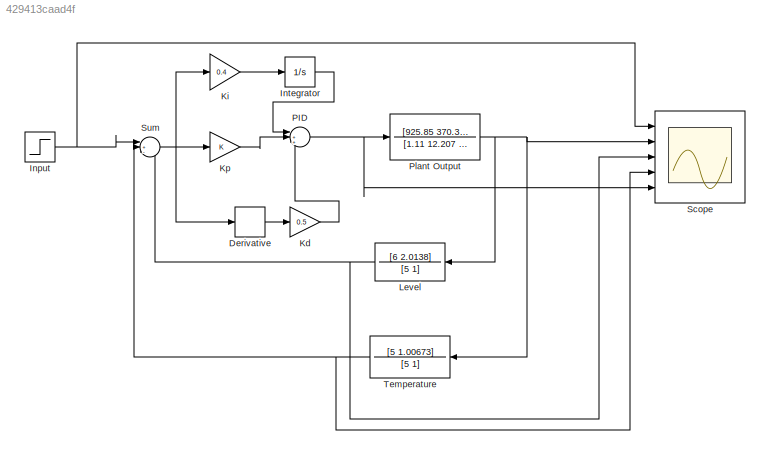
MODEL slx_429413caad4f
KIND model
CONFIG AbsTol = auto
CONFIG EnableMultiTasking = off
CONFIG FixedStep = auto
CONFIG MaxStep = auto
CONFIG MinStep = auto
CONFIG RelTol = 1e-3
CONFIG SampleTimeConstraint = Unconstrained
CONFIG SolverName = ode45
CONFIG StartTime = 0.0
CONFIG StopTime = 12
WORKSPACE source: mxarray member
WORKSPACE e = -5
BLOCK [Derivative] Derivative
BLOCK [Step] Input
  SampleTime = 0
BLOCK [Integrator] Integrator
  Ports = [1, 1]
BLOCK [Gain] Kd
  Gain = 0.5
BLOCK [Gain] Ki
  Gain = 0.4
BLOCK [Gain] Kp
BLOCK [TransferFcn] Level
  Denominator = [5 1]
  Numerator = [6 2.0138]
BLOCK [Sum] PID
  Inputs = |+++
  NameLocation = left
  Ports = [3, 1]
BLOCK [TransferFcn] Plant Output
  Denominator = [1.11 12.207 31.243 10.77 1]
  Numerator = [925.85 370.333]
BLOCK [Scope] Scope
  Floating = off
  NumInputPorts = 5
  Ports = [5]
  ScopeSpecificationString = Simulink.scopes.TimeScopeBlockCfg('CurrentConfiguration', extmgr.ConfigurationSet(extmgr.Configuration('Core','General UI',true,'FigureColor',[1 1 1]),extmgr.Configuration('Core','Source UI',true),extmgr.Configuration('Sources','WiredSimulink',true,'DataLoggingSaveFormat','StructureWithTime','DataLoggingDecimation','1','DataLoggingDecimateData',true),extmgr.Configuration('Visuals','Time Domain',tr...<+7746ch>
BLOCK [Sum] Sum
  Inputs = |+--
  Ports = [3, 1]
BLOCK [TransferFcn] Temperature
  Denominator = [5 1]
  Numerator = [5 1.00673]
LINE Derivative:1 -> Kd:1
NET Input:1 -> Scope:1, Sum:1
LINE Integrator:1 -> PID:1
LINE Kd:1 -> PID:3
LINE Ki:1 -> Integrator:1
LINE Kp:1 -> PID:2
NET Level:1 -> Scope:3, Sum:3
NET PID:1 -> Plant Output:1, Scope:5
NET Plant Output:1 -> Level:1, Scope:2, Temperature:1
NET Sum:1 -> Derivative:1, Ki:1, Kp:1
NET Temperature:1 -> Scope:4, Sum:2
note: NET lines group one-source signal fan-out (src -> all destinations, sorted); 1:1 wires keep LINE
